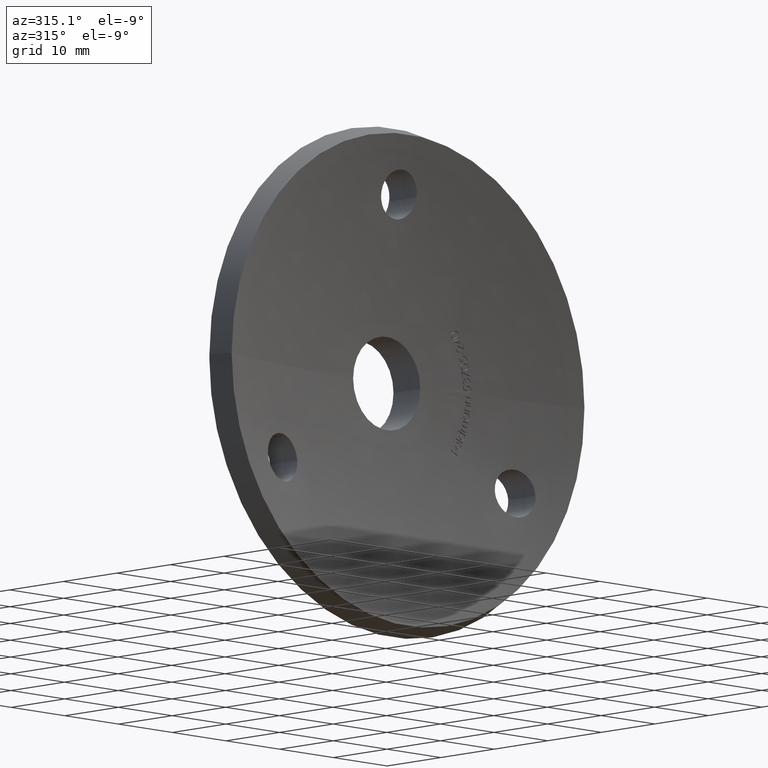
[diagram: clean part render]
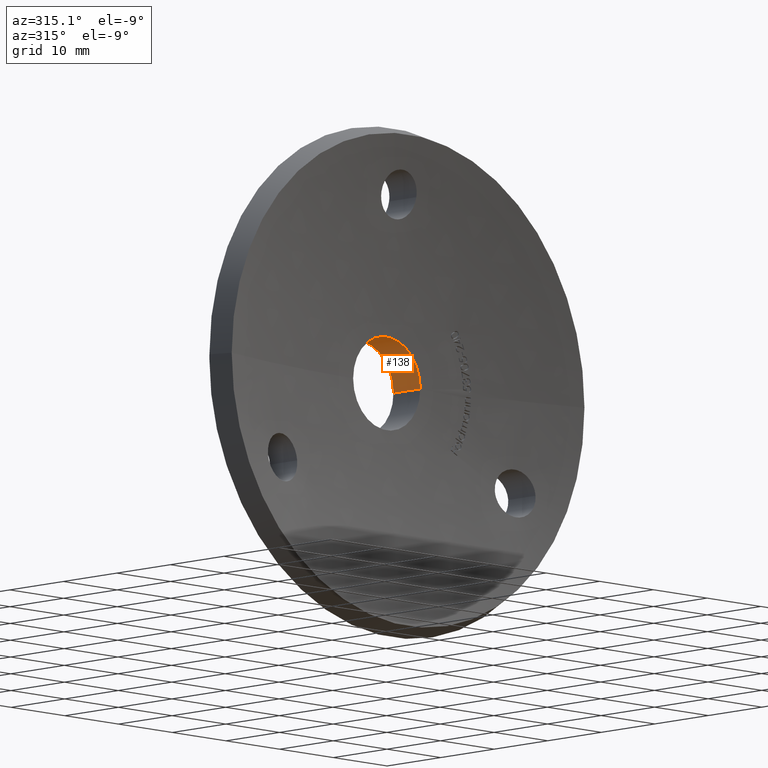
[diagram: same view with one face highlighted and labeled with its STEP entity id]
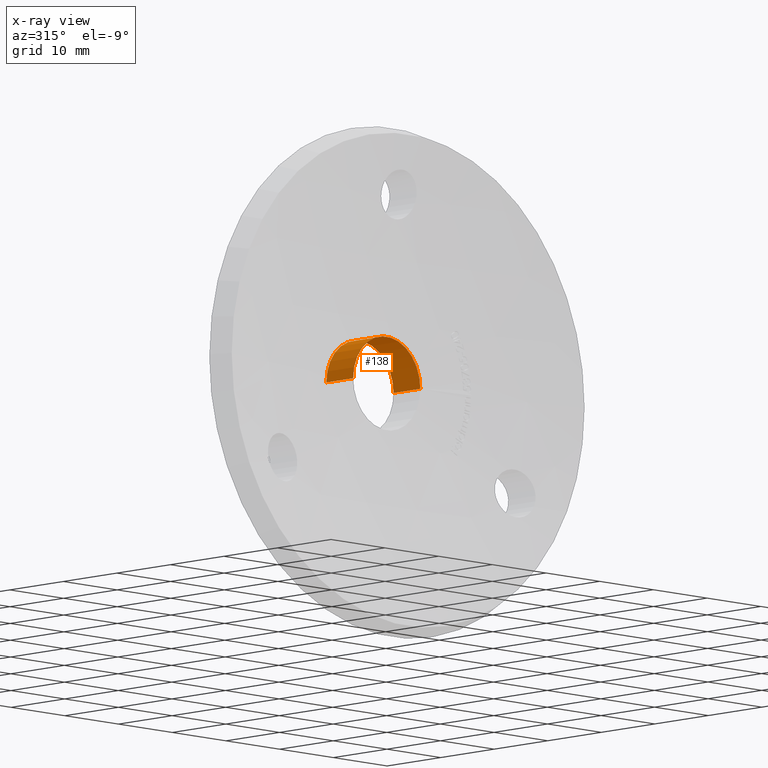
[diagram: x-ray of the same camera — body ghosted, the highlighted face saturated]
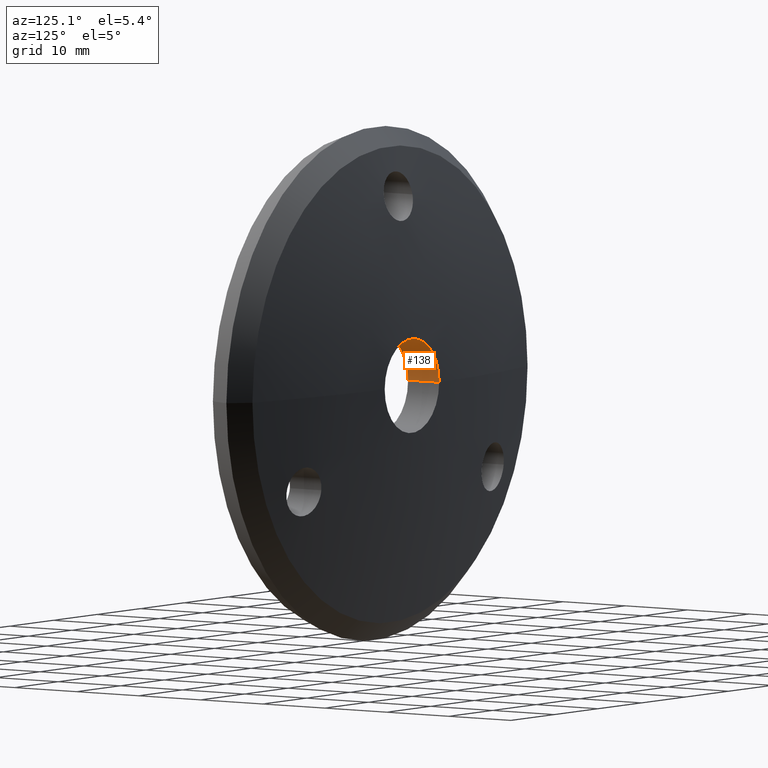
[diagram: same view with one face highlighted and labeled with its STEP entity id]
A machine part, auxiliary view. The second image highlights one B-rep face of the part: STEP entity #138.
The next image is the same camera in x-ray: the body ghosted, the highlighted face saturated — about 0% of this face is hidden behind the body in this view.
A second angle (auxiliary view) of the same face is appended — the face is thin or edge-on in the first view.
In plain terms, the highlighted cylindrical surface (partial cylindrical patch) has radius 6.25 mm, axis along (-0, 1, -0).
Its self-contained STEP definition (entity closure, byte-faithful):
#18 = VERTEX_POINT ( 'NONE', #4379 ) ;
#138 = ADVANCED_FACE ( 'NONE', ( #7705 ), #11390, .F. ) ;
#603 = CARTESIAN_POINT ( 'NONE',  ( -6.249999999999849898, 5.000000000000004441, 0.000000000000000000 ) ) ;
#699 = VECTOR ( 'NONE', #8569, 1000.000000000000000 ) ;
#1290 = AXIS2_PLACEMENT_3D ( 'NONE', #2115, #9099, #12212 ) ;
#1500 = VECTOR ( 'NONE', #8752, 1000.000000000000000 ) ;
#1624 = CIRCLE ( 'NONE', #7412, 6.249999999999849898 ) ;
#1754 = DIRECTION ( 'NONE',  ( -1.873600393855974325E-19, 1.000000000000000000, -0.000000000000000000 ) ) ;
#1920 = EDGE_LOOP ( 'NONE', ( #12414, #12595, #2052, #10970 ) ) ;
#2052 = ORIENTED_EDGE ( 'NONE', *, *, #6039, .T. ) ;
#2115 = CARTESIAN_POINT ( 'NONE',  ( -9.101148846307532162E-19, 4.857572018106197653, 0.000000000000000000 ) ) ;
#3239 = LINE ( 'NONE', #603, #1500 ) ;
#3989 = CARTESIAN_POINT ( 'NONE',  ( 2.769568483248144150E-20, -0.1478206608159504665, 0.000000000000000000 ) ) ;
#4119 = CARTESIAN_POINT ( 'NONE',  ( -6.249999999999849898, 4.857572018106197653, -2.314582450388493275E-15 ) ) ;
#4357 = LINE ( 'NONE', #10581, #699 ) ;
#4379 = CARTESIAN_POINT ( 'NONE',  ( 6.249999999999849898, 4.857572018106197653, 0.000000000000000000 ) ) ;
#4983 = VERTEX_POINT ( 'NONE', #7897 ) ;
#5821 = VERTEX_POINT ( 'NONE', #4119 ) ;
#5958 = DIRECTION ( 'NONE',  ( -1.873600393855974325E-19, 1.000000000000000000, -0.000000000000000000 ) ) ;
#6039 = EDGE_CURVE ( 'NONE', #9548, #5821, #3239, .T. ) ;
#7412 = AXIS2_PLACEMENT_3D ( 'NONE', #3989, #5958, #10012 ) ;
#7705 = FACE_OUTER_BOUND ( 'NONE', #1920, .T. ) ;
#7743 = AXIS2_PLACEMENT_3D ( 'NONE', #12848, #1754, #9994 ) ;
#7897 = CARTESIAN_POINT ( 'NONE',  ( 6.249999999999849898, -0.1478206608159504665, 0.000000000000000000 ) ) ;
#8237 = EDGE_CURVE ( 'NONE', #4983, #18, #4357, .T. ) ;
#8569 = DIRECTION ( 'NONE',  ( -1.873600393855974325E-19, 1.000000000000000000, -0.000000000000000000 ) ) ;
#8681 = CIRCLE ( 'NONE', #1290, 6.249999999999849898 ) ;
#8752 = DIRECTION ( 'NONE',  ( -1.873600393855974325E-19, 1.000000000000000000, -0.000000000000000000 ) ) ;
#9099 = DIRECTION ( 'NONE',  ( -1.873600393855974325E-19, 1.000000000000000000, -0.000000000000000000 ) ) ;
#9548 = VERTEX_POINT ( 'NONE', #10327 ) ;
#9994 = DIRECTION ( 'NONE',  ( -1.000000000000000000, 0.000000000000000000, 0.000000000000000000 ) ) ;
#10012 = DIRECTION ( 'NONE',  ( -1.000000000000000000, 0.000000000000000000, 0.000000000000000000 ) ) ;
#10327 = CARTESIAN_POINT ( 'NONE',  ( -6.249999999999849898, -0.1478206608159504665, -2.393244512369030344E-15 ) ) ;
#10581 = CARTESIAN_POINT ( 'NONE',  ( 6.249999999999849898, 5.000000000000004441, 7.654042494670774196E-16 ) ) ;
#10970 = ORIENTED_EDGE ( 'NONE', *, *, #12986, .T. ) ;
#11390 = CYLINDRICAL_SURFACE ( 'NONE', #7743, 6.249999999999849898 ) ;
#11757 = EDGE_CURVE ( 'NONE', #9548, #4983, #1624, .T. ) ;
#12212 = DIRECTION ( 'NONE',  ( -1.000000000000000000, 0.000000000000000000, 0.000000000000000000 ) ) ;
#12414 = ORIENTED_EDGE ( 'NONE', *, *, #8237, .F. ) ;
#12595 = ORIENTED_EDGE ( 'NONE', *, *, #11757, .F. ) ;
#12848 = CARTESIAN_POINT ( 'NONE',  ( -9.368001969279880053E-19, 5.000000000000004441, 0.000000000000000000 ) ) ;
#12986 = EDGE_CURVE ( 'NONE', #5821, #18, #8681, .T. ) ;